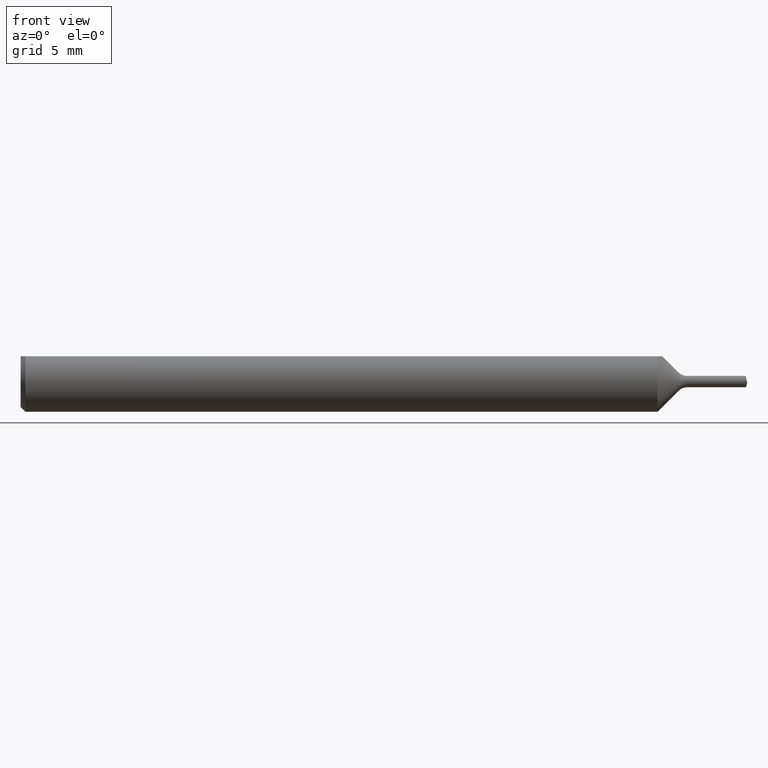
[diagram: clean part render]
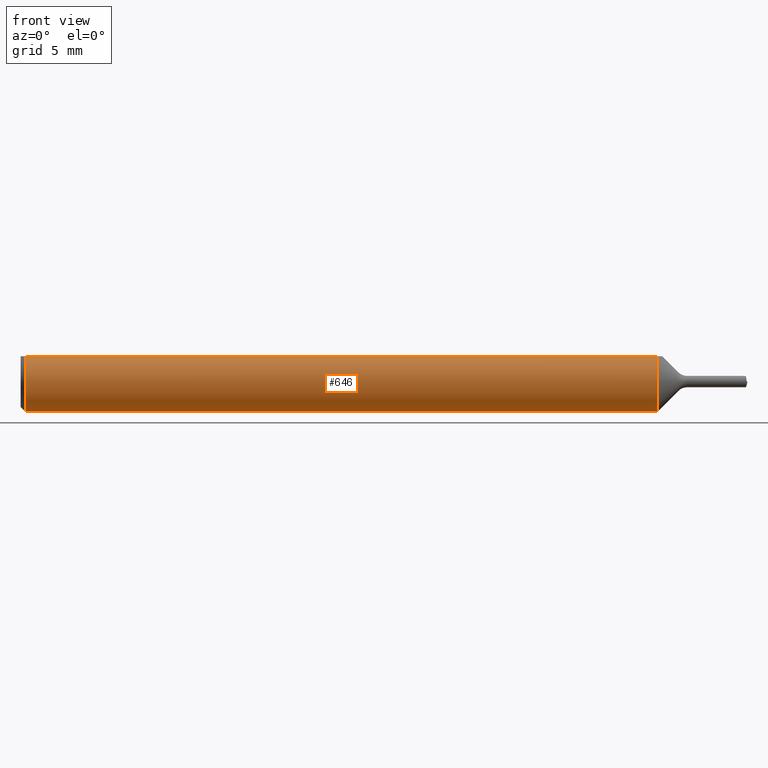
[diagram: same view with one face highlighted and labeled with its STEP entity id]
A machine part, front view. The second image highlights one B-rep face of the part: STEP entity #646.
In plain terms, the highlighted cylindrical surface (edge-blend (fillet) strip) has radius 1.5837 mm, axis along (-1, -0, -0).
Its self-contained STEP definition (entity closure, byte-faithful):
#18 = LINE ( 'NONE', #247, #237 ) ;
#20 = DIRECTION ( 'NONE',  ( 0.000000000000000000, 0.000000000000000000, 1.000000000000000000 ) ) ;
#22 = AXIS2_PLACEMENT_3D ( 'NONE', #391, #62, #600 ) ;
#24 = DIRECTION ( 'NONE',  ( -1.000000000000000000, -0.000000000000000000, -0.000000000000000000 ) ) ;
#30 = FACE_OUTER_BOUND ( 'NONE', #365, .T. ) ;
#38 = ORIENTED_EDGE ( 'NONE', *, *, #448, .T. ) ;
#49 = AXIS2_PLACEMENT_3D ( 'NONE', #306, #531, #20 ) ;
#57 = AXIS2_PLACEMENT_3D ( 'NONE', #117, #556, #67 ) ;
#62 = DIRECTION ( 'NONE',  ( 1.000000000000000000, 0.000000000000000000, 0.000000000000000000 ) ) ;
#65 = CARTESIAN_POINT ( 'NONE',  ( 0.01000000000000839627, -0.03386738844395137393, 0.05235000000000001458 ) ) ;
#67 = DIRECTION ( 'NONE',  ( 0.000000000000000000, 0.000000000000000000, -1.000000000000000000 ) ) ;
#94 = VERTEX_POINT ( 'NONE', #490 ) ;
#96 = CARTESIAN_POINT ( 'NONE',  ( 0.000000000000000000, 0.03386738844375218604, 0.05235000000000001458 ) ) ;
#117 = CARTESIAN_POINT ( 'NONE',  ( 0.009999999999999887451, 0.000000000000000000, 0.000000000000000000 ) ) ;
#132 = DIRECTION ( 'NONE',  ( -1.000000000000000000, -0.000000000000000000, -0.000000000000000000 ) ) ;
#138 = EDGE_CURVE ( 'NONE', #208, #94, #340, .T. ) ;
#145 = VERTEX_POINT ( 'NONE', #549 ) ;
#157 = CIRCLE ( 'NONE', #584, 0.06235000000000000264 ) ;
#192 = DIRECTION ( 'NONE',  ( -1.000000000000000000, -0.000000000000000000, -0.000000000000000000 ) ) ;
#208 = VERTEX_POINT ( 'NONE', #65 ) ;
#237 = VECTOR ( 'NONE', #192, 39.37007874015748143 ) ;
#239 = CARTESIAN_POINT ( 'NONE',  ( 1.314400000000000013, 0.000000000000000000, 0.000000000000000000 ) ) ;
#246 = EDGE_CURVE ( 'NONE', #94, #145, #315, .T. ) ;
#247 = CARTESIAN_POINT ( 'NONE',  ( 0.000000000000000000, -0.03386738844375218604, 0.05235000000000001458 ) ) ;
#273 = VECTOR ( 'NONE', #643, 39.37007874015748143 ) ;
#295 = EDGE_CURVE ( 'NONE', #628, #469, #157, .T. ) ;
#306 = CARTESIAN_POINT ( 'NONE',  ( 0.000000000000000000, 0.000000000000000000, 0.000000000000000000 ) ) ;
#315 = CIRCLE ( 'NONE', #57, 0.06235000000000000264 ) ;
#318 = CARTESIAN_POINT ( 'NONE',  ( 1.314400000000000013, -0.03386738844375218604, 0.05235000000000001458 ) ) ;
#340 = CIRCLE ( 'NONE', #22, 0.06235000000000000264 ) ;
#342 = CARTESIAN_POINT ( 'NONE',  ( 1.314400000000000013, 7.635672792683746671E-18, -0.06235000000000000264 ) ) ;
#358 = ORIENTED_EDGE ( 'NONE', *, *, #471, .T. ) ;
#365 = EDGE_LOOP ( 'NONE', ( #676, #575, #358, #383, #485, #38 ) ) ;
#383 = ORIENTED_EDGE ( 'NONE', *, *, #138, .T. ) ;
#391 = CARTESIAN_POINT ( 'NONE',  ( 0.009999999999999887451, 0.000000000000000000, 0.000000000000000000 ) ) ;
#448 = EDGE_CURVE ( 'NONE', #145, #702, #580, .T. ) ;
#469 = VERTEX_POINT ( 'NONE', #318 ) ;
#471 = EDGE_CURVE ( 'NONE', #469, #208, #18, .T. ) ;
#485 = ORIENTED_EDGE ( 'NONE', *, *, #246, .T. ) ;
#490 = CARTESIAN_POINT ( 'NONE',  ( 0.009999999999999887451, 0.000000000000000000, -0.06235000000000000264 ) ) ;
#506 = DIRECTION ( 'NONE',  ( 0.000000000000000000, 0.000000000000000000, 1.000000000000000000 ) ) ;
#531 = DIRECTION ( 'NONE',  ( -1.000000000000000000, -0.000000000000000000, -0.000000000000000000 ) ) ;
#549 = CARTESIAN_POINT ( 'NONE',  ( 0.009999999999999882247, 0.03386738844375217217, 0.05235000000000001458 ) ) ;
#556 = DIRECTION ( 'NONE',  ( 1.000000000000000000, 0.000000000000000000, 0.000000000000000000 ) ) ;
#575 = ORIENTED_EDGE ( 'NONE', *, *, #295, .T. ) ;
#579 = EDGE_CURVE ( 'NONE', #702, #628, #615, .T. ) ;
#580 = LINE ( 'NONE', #96, #273 ) ;
#584 = AXIS2_PLACEMENT_3D ( 'NONE', #612, #24, #665 ) ;
#600 = DIRECTION ( 'NONE',  ( 0.000000000000000000, 0.000000000000000000, -1.000000000000000000 ) ) ;
#612 = CARTESIAN_POINT ( 'NONE',  ( 1.314400000000000013, 0.000000000000000000, 0.000000000000000000 ) ) ;
#613 = CARTESIAN_POINT ( 'NONE',  ( 1.314400000000000013, 0.03386738844375218604, 0.05235000000000001458 ) ) ;
#615 = CIRCLE ( 'NONE', #689, 0.06235000000000000264 ) ;
#628 = VERTEX_POINT ( 'NONE', #342 ) ;
#643 = DIRECTION ( 'NONE',  ( 1.000000000000000000, 0.000000000000000000, 0.000000000000000000 ) ) ;
#646 = ADVANCED_FACE ( 'NONE', ( #30 ), #684, .T. ) ;
#665 = DIRECTION ( 'NONE',  ( 0.000000000000000000, 0.000000000000000000, 1.000000000000000000 ) ) ;
#676 = ORIENTED_EDGE ( 'NONE', *, *, #579, .T. ) ;
#684 = CYLINDRICAL_SURFACE ( 'NONE', #49, 0.06235000000000000264 ) ;
#689 = AXIS2_PLACEMENT_3D ( 'NONE', #239, #132, #506 ) ;
#702 = VERTEX_POINT ( 'NONE', #613 ) ;